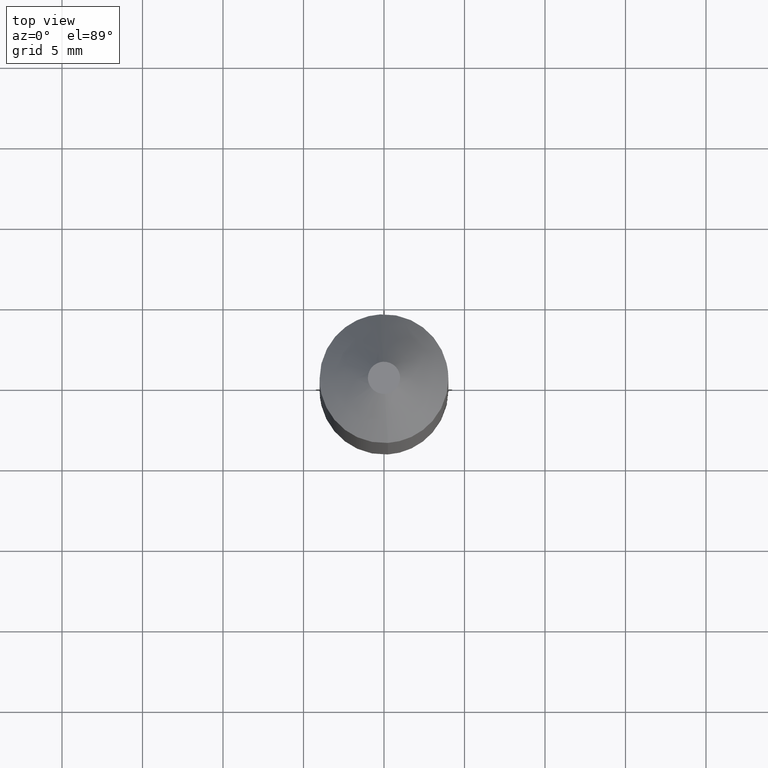
[diagram: clean part render]
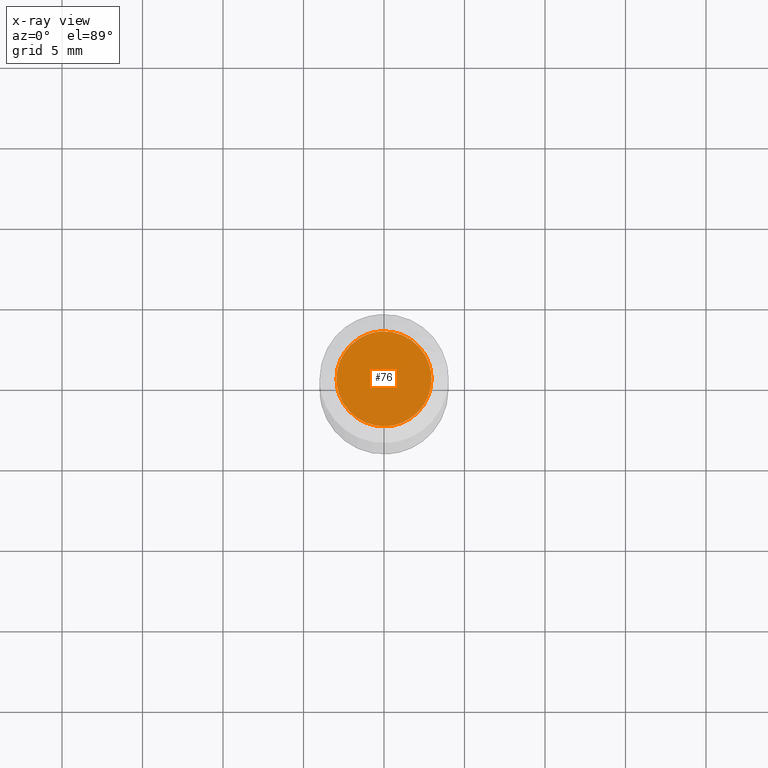
[diagram: x-ray — body ghosted, one internal face saturated and labeled with its STEP entity id]
A machine part, top view, then the same camera in x-ray: the body is ghosted and one INTERNAL B-rep face — a face not visible from any outside direction — is saturated and labeled: STEP entity #76.
In plain terms, the highlighted face is a freeform B-spline surface patch.
Its self-contained STEP definition (entity closure, byte-faithful):
#5=CARTESIAN_POINT('',(3.244704988564655,-3.244632392562092,40.0));
#6=CARTESIAN_POINT('',(-3.244705146814987,-3.244632392562092,40.0));
#7=CARTESIAN_POINT('',(3.244704988564655,3.244632287061871,40.0));
#8=CARTESIAN_POINT('',(-3.244705146814987,3.244632287061871,40.0));
#9=B_SPLINE_SURFACE_WITH_KNOTS('',1,1,((#5,#7),(#6,#8)),.UNSPECIFIED.,.F.,.F.,.U.,(2,2),(2,2),(0.0,6.489410135379641),(0.0,6.489264679623962),.UNSPECIFIED.);
#10=CARTESIAN_POINT('',(-2.950000000000000,0.0,40.0));
#11=VERTEX_POINT('',#10);
#12=CARTESIAN_POINT('',(-0.180093191696353,2.944497655340316,40.0));
#13=VERTEX_POINT('',#12);
#14=CARTESIAN_POINT('',(-2.950000000000000,0.0,40.0));
#15=CARTESIAN_POINT('',(-2.949999999999999,2.775082897307097,39.999999999999993));
#16=CARTESIAN_POINT('',(-0.180093191696353,2.944497655340316,40.000000000000007));
#24=(BOUNDED_CURVE()B_SPLINE_CURVE(2,(#14,#15,#16),.UNSPECIFIED.,.F.,.U.)B_SPLINE_CURVE_WITH_KNOTS((3,3),(0.0,0.239332962237953),.UNSPECIFIED.)CURVE()GEOMETRIC_REPRESENTATION_ITEM()RATIONAL_B_SPLINE_CURVE((1.0,0.719603993287870,0.976072041664596))REPRESENTATION_ITEM(''));
#25=EDGE_CURVE('',#11,#13,#24,.T.);
#26=ORIENTED_EDGE('',*,*,#25,.T.);
#27=CARTESIAN_POINT('',(2.950000000000000,0.0,40.0));
#28=VERTEX_POINT('',#27);
#29=CARTESIAN_POINT('',(-0.180093191696353,2.944497655340316,40.000000000000007));
#30=CARTESIAN_POINT('',(-0.090130651765196,2.950000000000000,40.000000000000007));
#31=CARTESIAN_POINT('',(0.0,2.950000000000000,40.0));
#32=CARTESIAN_POINT('',(2.950000000000000,2.950000000000000,39.999999999999993));
#33=CARTESIAN_POINT('',(2.950000000000000,0.0,40.0));
#41=(BOUNDED_CURVE()B_SPLINE_CURVE(2,(#29,#30,#31,#32,#33),.UNSPECIFIED.,.F.,.U.)B_SPLINE_CURVE_WITH_KNOTS((3,2,3),(0.239332962237953,0.250000000000000,0.500000000000000),.UNSPECIFIED.)CURVE()GEOMETRIC_REPRESENTATION_ITEM()RATIONAL_B_SPLINE_CURVE((0.976072041664596,0.987502787898677,1.0,0.707106781186548,1.0))REPRESENTATION_ITEM(''));
#42=EDGE_CURVE('',#13,#28,#41,.T.);
#43=ORIENTED_EDGE('',*,*,#42,.T.);
#44=CARTESIAN_POINT('',(0.180093191696353,-2.944497655340316,39.999999999999993));
#45=VERTEX_POINT('',#44);
#46=CARTESIAN_POINT('',(2.950000000000000,0.0,40.0));
#47=CARTESIAN_POINT('',(2.949999999999999,-2.775082897307097,39.999999999999993));
#48=CARTESIAN_POINT('',(0.180093191696353,-2.944497655340316,40.000000000000007));
#56=(BOUNDED_CURVE()B_SPLINE_CURVE(2,(#46,#47,#48),.UNSPECIFIED.,.F.,.U.)B_SPLINE_CURVE_WITH_KNOTS((3,3),(0.500000000000000,0.739332962237953),.UNSPECIFIED.)CURVE()GEOMETRIC_REPRESENTATION_ITEM()RATIONAL_B_SPLINE_CURVE((1.0,0.719603993287870,0.976072041664596))REPRESENTATION_ITEM(''));
#57=EDGE_CURVE('',#28,#45,#56,.T.);
#58=ORIENTED_EDGE('',*,*,#57,.T.);
#59=CARTESIAN_POINT('',(0.180093191696353,-2.944497655340316,40.000000000000007));
#60=CARTESIAN_POINT('',(0.090130651765196,-2.950000000000000,40.000000000000007));
#61=CARTESIAN_POINT('',(0.0,-2.950000000000000,40.0));
#62=CARTESIAN_POINT('',(-2.950000000000000,-2.950000000000000,39.999999999999993));
#63=CARTESIAN_POINT('',(-2.950000000000000,0.0,40.0));
#71=(BOUNDED_CURVE()B_SPLINE_CURVE(2,(#59,#60,#61,#62,#63),.UNSPECIFIED.,.F.,.U.)B_SPLINE_CURVE_WITH_KNOTS((3,2,3),(0.739332962237953,0.750000000000000,1.0),.UNSPECIFIED.)CURVE()GEOMETRIC_REPRESENTATION_ITEM()RATIONAL_B_SPLINE_CURVE((0.976072041664596,0.987502787898677,1.0,0.707106781186548,1.0))REPRESENTATION_ITEM(''));
#72=EDGE_CURVE('',#45,#11,#71,.T.);
#73=ORIENTED_EDGE('',*,*,#72,.T.);
#74=EDGE_LOOP('',(#26,#43,#58,#73));
#75=FACE_OUTER_BOUND('',#74,.T.);
#76=ADVANCED_FACE('',(#75),#9,.T.);